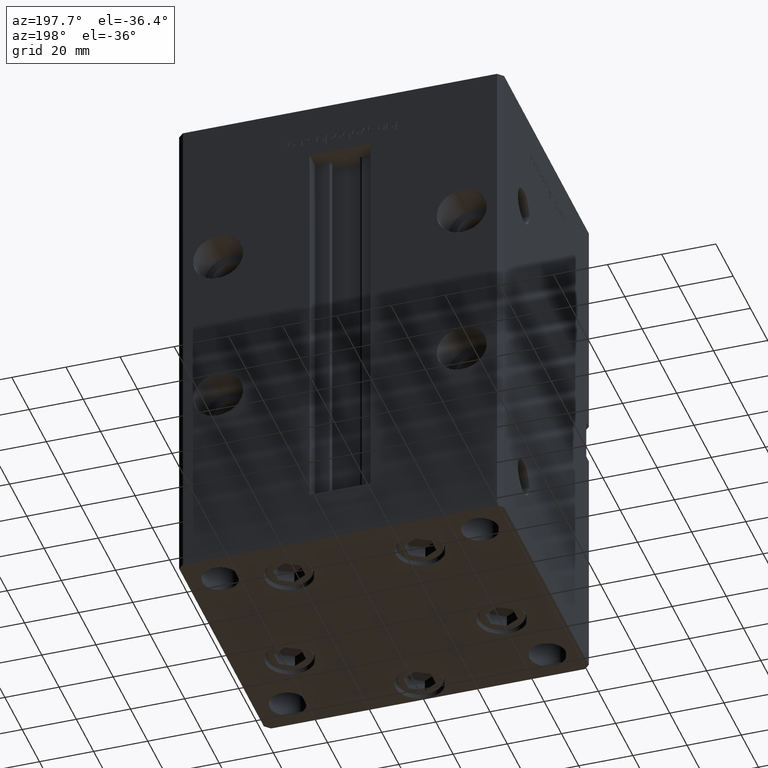
[diagram: clean part render]
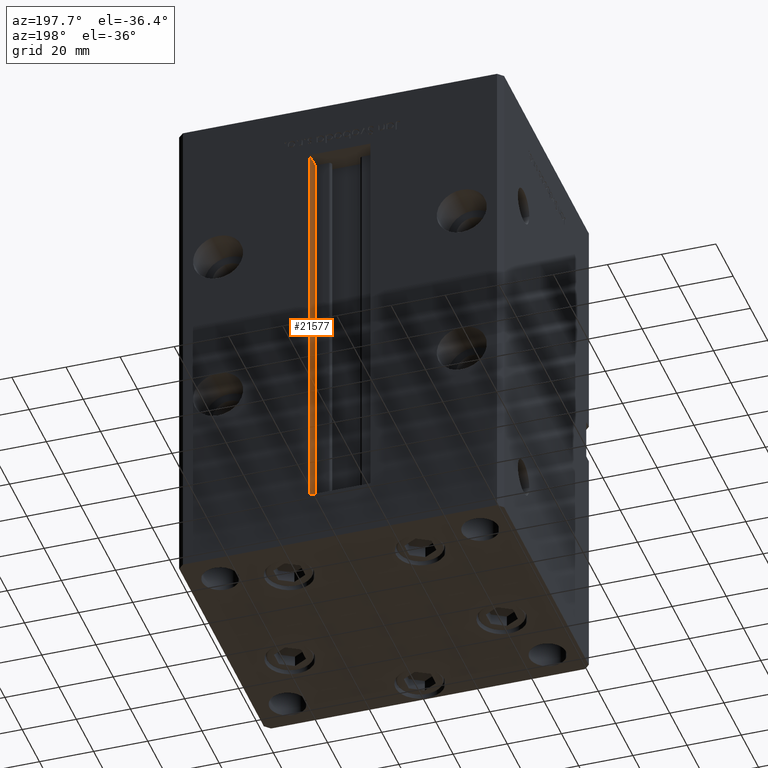
[diagram: same view with one face highlighted and labeled with its STEP entity id]
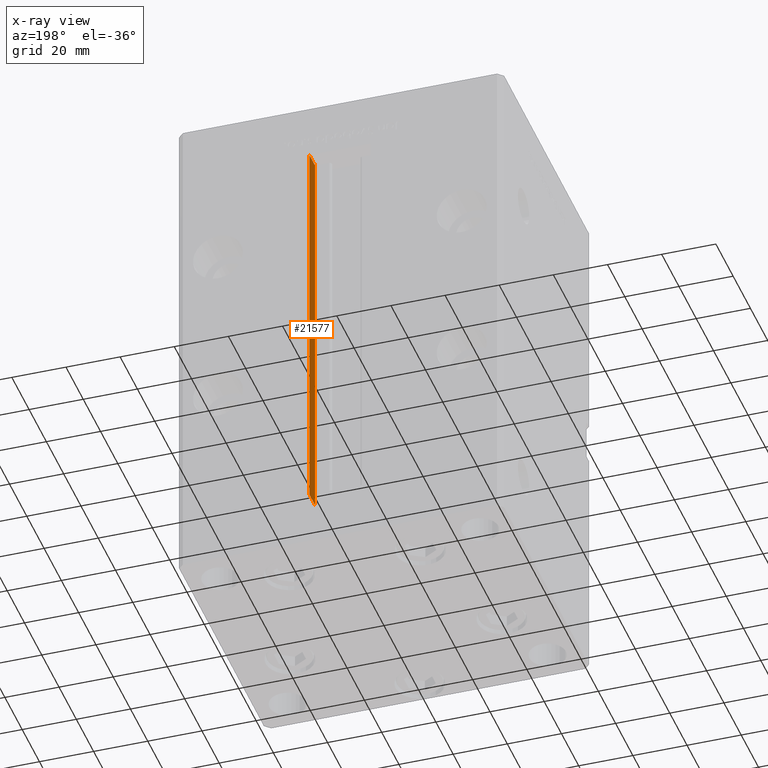
[diagram: x-ray of the same camera — body ghosted, the highlighted face saturated]
A machine part, auxiliary view. The second image highlights one B-rep face of the part: STEP entity #21577.
The next image is the same camera in x-ray: the body ghosted, the highlighted face saturated — about 0% of this face is hidden behind the body in this view.
In plain terms, the highlighted planar face has unit normal (1, 0, 0).
Its self-contained STEP definition (entity closure, byte-faithful):
#1799 = VERTEX_POINT ( 'NONE', #12113 ) ;
#3811 = LINE ( 'NONE', #24461, #49798 ) ;
#3870 = ORIENTED_EDGE ( 'NONE', *, *, #26129, .F. ) ;
#4356 = VECTOR ( 'NONE', #46793, 1000.000000000000000 ) ;
#4704 = VECTOR ( 'NONE', #7587, 1000.000000000000000 ) ;
#7587 = DIRECTION ( 'NONE',  ( -0.000000000000000000, -1.000000000000000000, 0.000000000000000000 ) ) ;
#11082 = DIRECTION ( 'NONE',  ( 1.000000000000000000, -0.000000000000000000, 0.000000000000000000 ) ) ;
#11773 = VERTEX_POINT ( 'NONE', #35476 ) ;
#12113 = CARTESIAN_POINT ( 'NONE',  ( 11.24999999999999822, 44.50000000000000711, 0.000000000000000000 ) ) ;
#12120 = DIRECTION ( 'NONE',  ( -0.000000000000000000, -0.000000000000000000, 1.000000000000000000 ) ) ;
#12168 = VERTEX_POINT ( 'NONE', #40335 ) ;
#15110 = FACE_OUTER_BOUND ( 'NONE', #26787, .T. ) ;
#16805 = EDGE_CURVE ( 'NONE', #21452, #12168, #51614, .T. ) ;
#17770 = CARTESIAN_POINT ( 'NONE',  ( 11.24999999999999822, 51.00000000000000711, 0.000000000000000000 ) ) ;
#21452 = VERTEX_POINT ( 'NONE', #37162 ) ;
#21577 = ADVANCED_FACE ( 'NONE', ( #15110 ), #31484, .F. ) ;
#24461 = CARTESIAN_POINT ( 'NONE',  ( 11.24999999999999822, 44.50000000000000711, 0.000000000000000000 ) ) ;
#26129 = EDGE_CURVE ( 'NONE', #12168, #11773, #28763, .T. ) ;
#26339 = DIRECTION ( 'NONE',  ( 0.000000000000000000, 1.000000000000000000, 0.000000000000000000 ) ) ;
#26787 = EDGE_LOOP ( 'NONE', ( #39775, #49930, #26857, #3870 ) ) ;
#26857 = ORIENTED_EDGE ( 'NONE', *, *, #49078, .T. ) ;
#28763 = LINE ( 'NONE', #45168, #4704 ) ;
#30361 = LINE ( 'NONE', #35472, #32462 ) ;
#31484 = PLANE ( 'NONE',  #47414 ) ;
#32462 = VECTOR ( 'NONE', #26339, 1000.000000000000000 ) ;
#35472 = CARTESIAN_POINT ( 'NONE',  ( 11.24999999999999822, 44.50000000000000711, 0.000000000000000000 ) ) ;
#35476 = CARTESIAN_POINT ( 'NONE',  ( 11.24999999999999822, 44.50000000000000711, 148.5000000000000000 ) ) ;
#37162 = CARTESIAN_POINT ( 'NONE',  ( 11.24999999999999822, 51.00000000000000711, 0.000000000000000000 ) ) ;
#39775 = ORIENTED_EDGE ( 'NONE', *, *, #16805, .F. ) ;
#40335 = CARTESIAN_POINT ( 'NONE',  ( 11.24999999999999112, 51.00000000000000711, 148.5000000000000000 ) ) ;
#42397 = EDGE_CURVE ( 'NONE', #1799, #21452, #30361, .T. ) ;
#45168 = CARTESIAN_POINT ( 'NONE',  ( 11.24999999999999822, 0.000000000000000000, 148.5000000000000000 ) ) ;
#46793 = DIRECTION ( 'NONE',  ( -0.000000000000000000, -0.000000000000000000, 1.000000000000000000 ) ) ;
#47414 = AXIS2_PLACEMENT_3D ( 'NONE', #47873, #11082, #48132 ) ;
#47873 = CARTESIAN_POINT ( 'NONE',  ( 11.24999999999999822, 44.50000000000000711, 0.000000000000000000 ) ) ;
#48132 = DIRECTION ( 'NONE',  ( 0.000000000000000000, 0.000000000000000000, -1.000000000000000000 ) ) ;
#49078 = EDGE_CURVE ( 'NONE', #1799, #11773, #3811, .T. ) ;
#49798 = VECTOR ( 'NONE', #12120, 1000.000000000000000 ) ;
#49930 = ORIENTED_EDGE ( 'NONE', *, *, #42397, .F. ) ;
#51614 = LINE ( 'NONE', #17770, #4356 ) ;